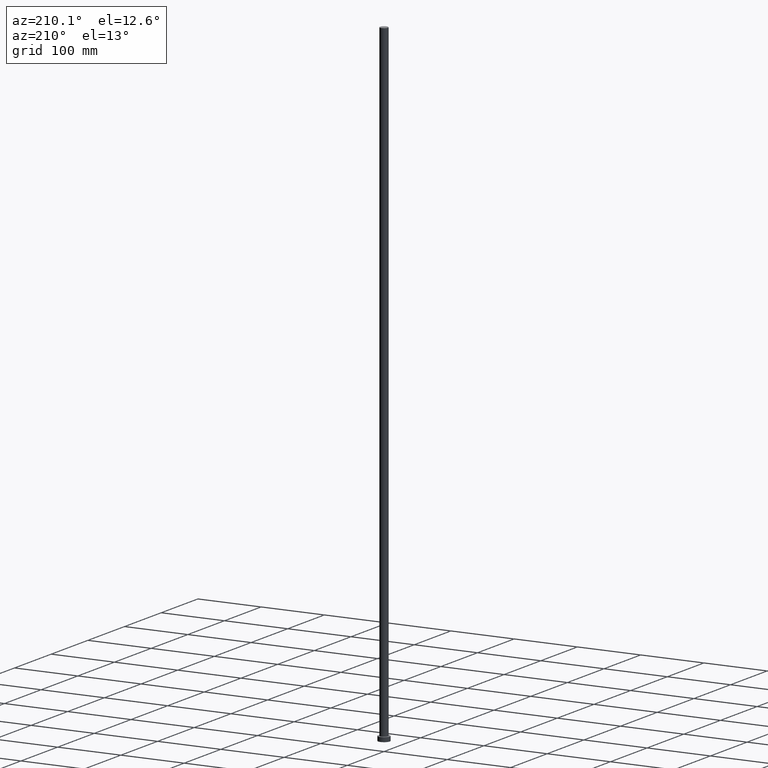
[diagram: clean part render]
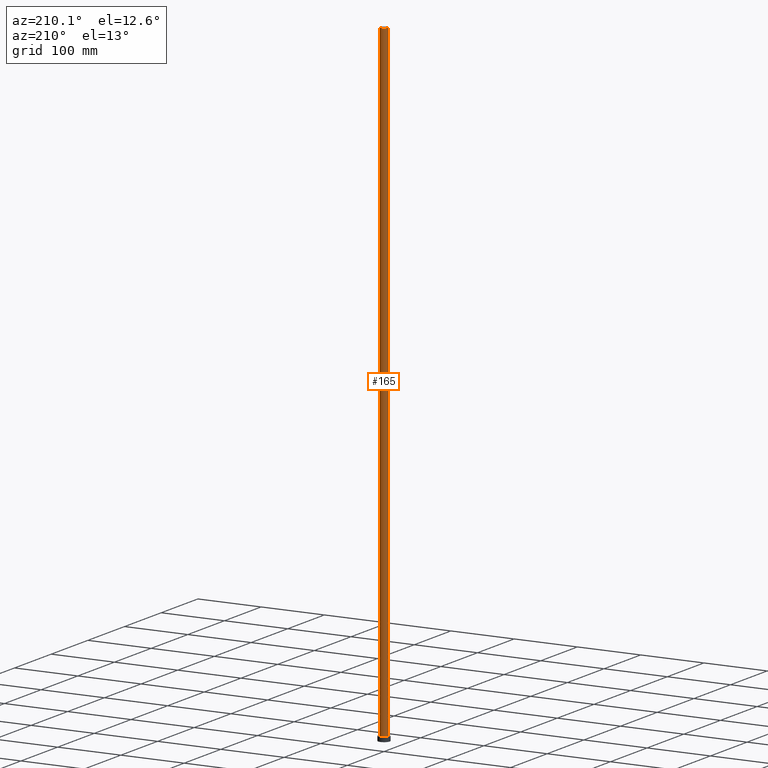
[diagram: same view with one face highlighted and labeled with its STEP entity id]
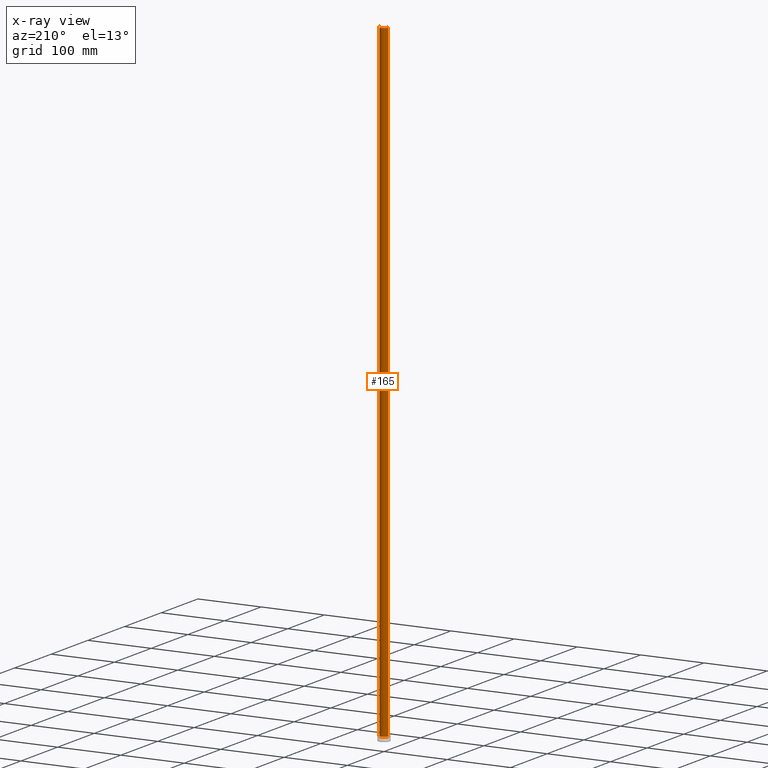
[diagram: x-ray of the same camera — body ghosted, the highlighted face saturated]
A machine part, auxiliary view. The second image highlights one B-rep face of the part: STEP entity #165.
The next image is the same camera in x-ray: the body ghosted, the highlighted face saturated — about 0% of this face is hidden behind the body in this view.
In plain terms, the highlighted cylindrical surface (edge-blend (fillet) strip) has radius 6.25 mm, axis along (-0, -0, -1).
Its self-contained STEP definition (entity closure, byte-faithful):
#2 = DIRECTION ( 'NONE',  ( -0.000000000000000000, -0.000000000000000000, -1.000000000000000000 ) ) ;
#7 = EDGE_CURVE ( 'NONE', #186, #250, #124, .T. ) ;
#12 = DIRECTION ( 'NONE',  ( 0.000000000000000000, 0.000000000000000000, 1.000000000000000000 ) ) ;
#18 = LINE ( 'NONE', #21, #181 ) ;
#21 = CARTESIAN_POINT ( 'NONE',  ( -6.250000000000000000, 0.000000000000000000, 1000.000000000000000 ) ) ;
#32 = EDGE_CURVE ( 'NONE', #248, #186, #208, .T. ) ;
#33 = DIRECTION ( 'NONE',  ( 1.000000000000000000, 0.000000000000000000, 0.000000000000000000 ) ) ;
#36 = VECTOR ( 'NONE', #38, 1000.000000000000000 ) ;
#38 = DIRECTION ( 'NONE',  ( -0.000000000000000000, -0.000000000000000000, -1.000000000000000000 ) ) ;
#51 = CARTESIAN_POINT ( 'NONE',  ( 0.000000000000000000, 0.000000000000000000, 7.000000000000000000 ) ) ;
#55 = CARTESIAN_POINT ( 'NONE',  ( 6.250000000000000000, 7.654042494670957606E-16, 1000.000000000000000 ) ) ;
#59 = CARTESIAN_POINT ( 'NONE',  ( 0.000000000000000000, 0.000000000000000000, 1000.000000000000000 ) ) ;
#72 = DIRECTION ( 'NONE',  ( 1.000000000000000000, 0.000000000000000000, 0.000000000000000000 ) ) ;
#77 = CARTESIAN_POINT ( 'NONE',  ( 0.000000000000000000, 0.000000000000000000, 1000.000000000000000 ) ) ;
#95 = EDGE_CURVE ( 'NONE', #248, #126, #205, .T. ) ;
#99 = CARTESIAN_POINT ( 'NONE',  ( 6.250000000000000000, 7.654042494670957606E-16, 1000.000000000000000 ) ) ;
#108 = EDGE_LOOP ( 'NONE', ( #229, #146, #183, #123 ) ) ;
#116 = DIRECTION ( 'NONE',  ( -1.000000000000000000, 0.000000000000000000, 0.000000000000000000 ) ) ;
#123 = ORIENTED_EDGE ( 'NONE', *, *, #151, .F. ) ;
#124 = CIRCLE ( 'NONE', #161, 6.250000000000000000 ) ;
#126 = VERTEX_POINT ( 'NONE', #190 ) ;
#134 = FACE_OUTER_BOUND ( 'NONE', #108, .T. ) ;
#146 = ORIENTED_EDGE ( 'NONE', *, *, #32, .T. ) ;
#151 = EDGE_CURVE ( 'NONE', #126, #250, #18, .T. ) ;
#155 = DIRECTION ( 'NONE',  ( 0.000000000000000000, 0.000000000000000000, 1.000000000000000000 ) ) ;
#161 = AXIS2_PLACEMENT_3D ( 'NONE', #51, #12, #72 ) ;
#165 = ADVANCED_FACE ( 'NONE', ( #134 ), #214, .T. ) ;
#167 = DIRECTION ( 'NONE',  ( -0.000000000000000000, -0.000000000000000000, -1.000000000000000000 ) ) ;
#181 = VECTOR ( 'NONE', #167, 1000.000000000000000 ) ;
#183 = ORIENTED_EDGE ( 'NONE', *, *, #7, .T. ) ;
#186 = VERTEX_POINT ( 'NONE', #232 ) ;
#190 = CARTESIAN_POINT ( 'NONE',  ( -6.250000000000000000, 0.000000000000000000, 1000.000000000000000 ) ) ;
#200 = CARTESIAN_POINT ( 'NONE',  ( -6.250000000000000000, 0.000000000000000000, 7.000000000000000000 ) ) ;
#205 = CIRCLE ( 'NONE', #230, 6.250000000000000000 ) ;
#208 = LINE ( 'NONE', #55, #36 ) ;
#214 = CYLINDRICAL_SURFACE ( 'NONE', #241, 6.250000000000000000 ) ;
#229 = ORIENTED_EDGE ( 'NONE', *, *, #95, .F. ) ;
#230 = AXIS2_PLACEMENT_3D ( 'NONE', #77, #155, #33 ) ;
#232 = CARTESIAN_POINT ( 'NONE',  ( 6.250000000000000000, 7.654042494670957606E-16, 7.000000000000000000 ) ) ;
#241 = AXIS2_PLACEMENT_3D ( 'NONE', #59, #2, #116 ) ;
#248 = VERTEX_POINT ( 'NONE', #99 ) ;
#250 = VERTEX_POINT ( 'NONE', #200 ) ;